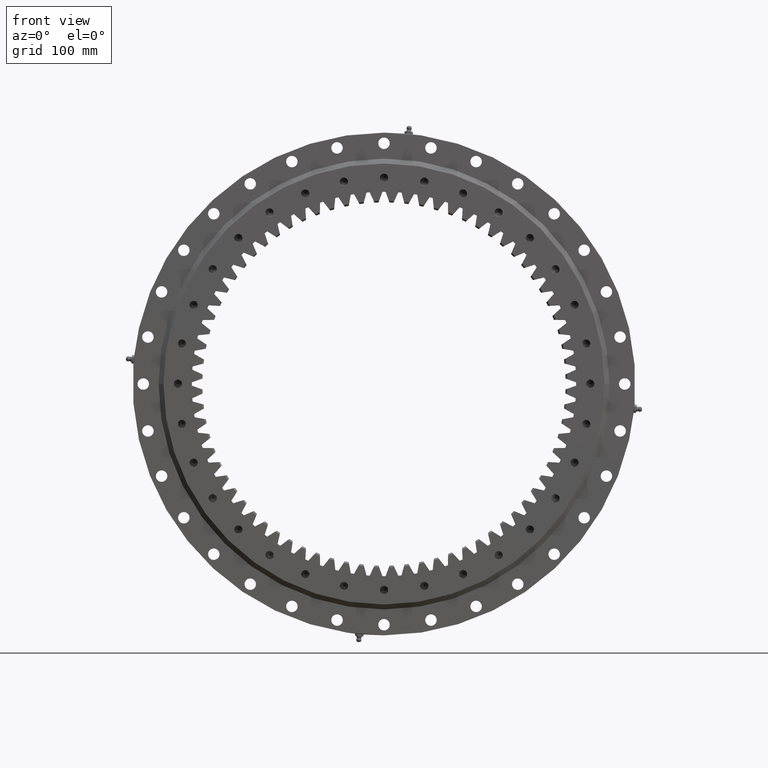
[diagram: clean part render]
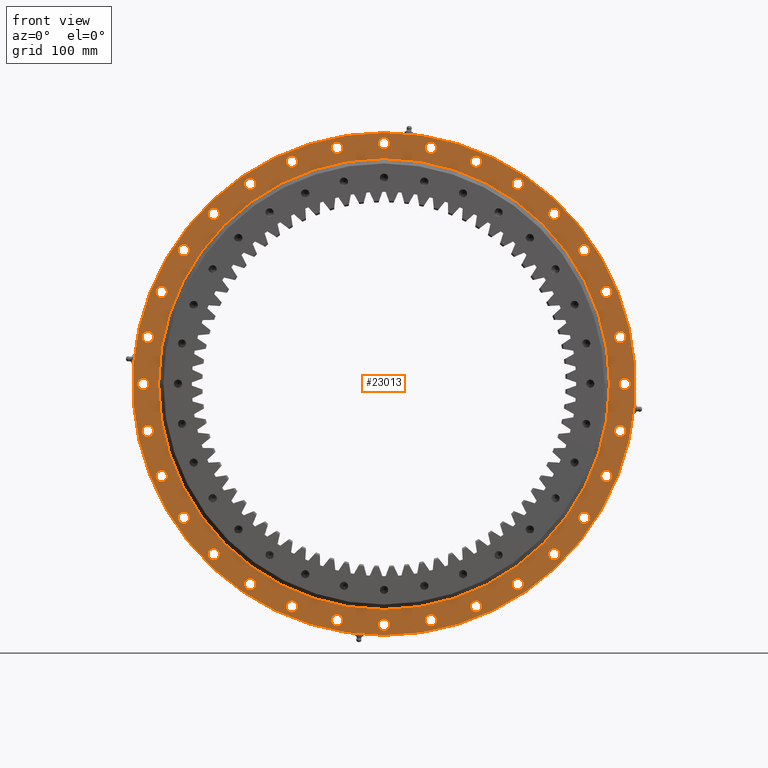
[diagram: same view with one face highlighted and labeled with its STEP entity id]
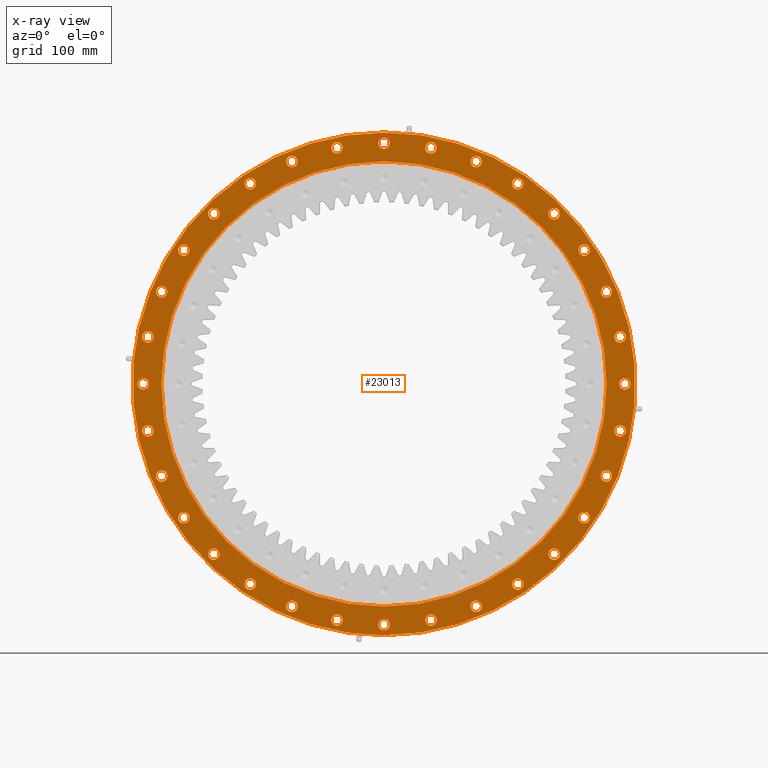
[diagram: x-ray of the same camera — body ghosted, the highlighted face saturated]
A machine part, front view. The second image highlights one B-rep face of the part: STEP entity #23013.
The next image is the same camera in x-ray: the body ghosted, the highlighted face saturated — about 0% of this face is hidden behind the body in this view.
In plain terms, the highlighted planar face has unit normal (-0, 1, 0).
Its self-contained STEP definition (entity closure, byte-faithful):
#51 = CARTESIAN_POINT ( 'NONE',  ( -294.9999999999999400, -17.99999999999991100, -1.196406405057057800E-012 ) ) ;
#72 = EDGE_CURVE ( 'NONE', #22870, #19099, #9537, .T. ) ;
#116 = CARTESIAN_POINT ( 'NONE',  ( -208.5965004500319800, -17.99999999999990800, 201.5965004500309000 ) ) ;
#229 = CARTESIAN_POINT ( 'NONE',  ( 2.112655002379531500E-015, -17.99999999999987600, -6.289591239694367800E-016 ) ) ;
#232 = CARTESIAN_POINT ( 'NONE',  ( -208.5965004500319800, -17.99999999999990800, 208.5965004500309600 ) ) ;
#247 = CIRCLE ( 'NONE', #5415, 7.000000000000020400 ) ;
#416 = CIRCLE ( 'NONE', #21886, 7.000000000000008900 ) ;
#517 = CARTESIAN_POINT ( 'NONE',  ( -215.5965004500302500, -17.99999999999989300, -208.5965004500326900 ) ) ;
#529 = DIRECTION ( 'NONE',  ( 5.551115123129744300E-017, 0.0000000000000000000, 1.000000000000000000 ) ) ;
#562 = FACE_BOUND ( 'NONE', #25421, .T. ) ;
#563 = CARTESIAN_POINT ( 'NONE',  ( 2.227877095894191600E-012, -17.99999999999986900, -294.9999999999999400 ) ) ;
#584 = AXIS2_PLACEMENT_3D ( 'NONE', #3314, #24551, #5464 ) ;
#624 = CARTESIAN_POINT ( 'NONE',  ( -238.2835356292511900, -17.99999999999991100, 163.8932187407820000 ) ) ;
#652 = EDGE_CURVE ( 'NONE', #5390, #8946, #23726, .T. ) ;
#719 = DIRECTION ( 'NONE',  ( 0.3826834323650846700, 0.0000000000000000000, -0.9238795325112889600 ) ) ;
#721 = DIRECTION ( 'NONE',  ( 1.173697223544192200E-016, -1.000000000000000000, -3.494217355385783800E-017 ) ) ;
#734 = EDGE_CURVE ( 'NONE', #4438, #9918, #17098, .T. ) ;
#739 = EDGE_LOOP ( 'NONE', ( #5429, #25823 ) ) ;
#942 = ORIENTED_EDGE ( 'NONE', *, *, #7267, .F. ) ;
#1071 = EDGE_CURVE ( 'NONE', #8108, #4105, #10790, .T. ) ;
#1152 = CARTESIAN_POINT ( 'NONE',  ( 1.725332150070510000E-014, -17.99999999999988300, 272.7500000000000000 ) ) ;
#1172 = CIRCLE ( 'NONE', #5298, 7.000000000000006200 ) ;
#1180 = FACE_BOUND ( 'NONE', #2270, .T. ) ;
#1199 = CARTESIAN_POINT ( 'NONE',  ( -163.8932187407831400, -17.99999999999990400, 252.2835356292504200 ) ) ;
#1301 = CARTESIAN_POINT ( 'NONE',  ( 282.3316577189535200, -17.99999999999984000, -57.55164499475476700 ) ) ;
#1453 = EDGE_LOOP ( 'NONE', ( #11685, #10391 ) ) ;
#1619 = VERTEX_POINT ( 'NONE', #10645 ) ;
#1642 = VERTEX_POINT ( 'NONE', #17771 ) ;
#1687 = EDGE_LOOP ( 'NONE', ( #17629, #13058 ) ) ;
#1755 = CARTESIAN_POINT ( 'NONE',  ( 112.8916125477037400, -17.99999999999985400, -272.5444620908285700 ) ) ;
#1759 = CARTESIAN_POINT ( 'NONE',  ( -272.5444620908289700, -17.99999999999990400, -112.8916125477026800 ) ) ;
#1787 = ORIENTED_EDGE ( 'NONE', *, *, #21158, .F. ) ;
#1824 = AXIS2_PLACEMENT_3D ( 'NONE', #14842, #11942, #25934 ) ;
#1831 = FACE_BOUND ( 'NONE', #18839, .T. ) ;
#1837 = DIRECTION ( 'NONE',  ( -0.1950903220161353000, 0.0000000000000000000, -0.9807852804032289900 ) ) ;
#1860 = CARTESIAN_POINT ( 'NONE',  ( 245.2835356292523600, -17.99999999999984400, -163.8932187407803000 ) ) ;
#1863 = AXIS2_PLACEMENT_3D ( 'NONE', #9253, #18066, #3852 ) ;
#1887 = DIRECTION ( 'NONE',  ( 1.173697223544192200E-016, -1.000000000000000000, -3.494217355385783800E-017 ) ) ;
#1897 = CARTESIAN_POINT ( 'NONE',  ( -245.2835356292511900, -17.99999999999991100, 163.8932187407819800 ) ) ;
#1979 = VERTEX_POINT ( 'NONE', #20901 ) ;
#1980 = AXIS2_PLACEMENT_3D ( 'NONE', #20455, #10368, #16360 ) ;
#2018 = DIRECTION ( 'NONE',  ( -0.8314696123025384600, 0.0000000000000000000, 0.5555702330196122800 ) ) ;
#2021 = DIRECTION ( 'NONE',  ( 0.1950903220161286100, 0.0000000000000000000, 0.9807852804032303200 ) ) ;
#2068 = EDGE_CURVE ( 'NONE', #4105, #8108, #10076, .T. ) ;
#2077 = DIRECTION ( 'NONE',  ( 1.173697223544192200E-016, -1.000000000000000000, -3.494217355385783800E-017 ) ) ;
#2096 = ORIENTED_EDGE ( 'NONE', *, *, #13990, .F. ) ;
#2151 = VERTEX_POINT ( 'NONE', #18977 ) ;
#2240 = VERTEX_POINT ( 'NONE', #11434 ) ;
#2270 = EDGE_LOOP ( 'NONE', ( #15337, #18810 ) ) ;
#2334 = CIRCLE ( 'NONE', #1980, 7.000000000000014200 ) ;
#2451 = CARTESIAN_POINT ( 'NONE',  ( 289.3316577189522700, -17.99999999999984700, 57.55164499476114800 ) ) ;
#2463 = CARTESIAN_POINT ( 'NONE',  ( 2.223931761462018000E-012, -17.99999999999986900, -301.9999999999999400 ) ) ;
#2492 = FACE_BOUND ( 'NONE', #13810, .T. ) ;
#2516 = EDGE_CURVE ( 'NONE', #2757, #18627, #9111, .T. ) ;
#2518 = AXIS2_PLACEMENT_3D ( 'NONE', #19861, #5542, #17212 ) ;
#2546 = ORIENTED_EDGE ( 'NONE', *, *, #2068, .F. ) ;
#2580 = AXIS2_PLACEMENT_3D ( 'NONE', #19115, #6956, #21143 ) ;
#2612 = ORIENTED_EDGE ( 'NONE', *, *, #4209, .F. ) ;
#2632 = ORIENTED_EDGE ( 'NONE', *, *, #6537, .F. ) ;
#2641 = VERTEX_POINT ( 'NONE', #25322 ) ;
#2748 = CARTESIAN_POINT ( 'NONE',  ( -282.3316577189531800, -17.99999999999991500, 57.55164499475672800 ) ) ;
#2757 = VERTEX_POINT ( 'NONE', #11684 ) ;
#2768 = DIRECTION ( 'NONE',  ( 0.9807852804032295400, 0.0000000000000000000, -0.1950903220161324400 ) ) ;
#2823 = CIRCLE ( 'NONE', #6670, 7.000000000000013300 ) ;
#2907 = ORIENTED_EDGE ( 'NONE', *, *, #3176, .F. ) ;
#2971 = AXIS2_PLACEMENT_3D ( 'NONE', #18924, #18007, #4264 ) ;
#3030 = CARTESIAN_POINT ( 'NONE',  ( -245.2835356292498800, -17.99999999999989700, -163.8932187407839900 ) ) ;
#3067 = CARTESIAN_POINT ( 'NONE',  ( 57.55164499475376500, -17.99999999999987900, 296.3316577189537500 ) ) ;
#3080 = DIRECTION ( 'NONE',  ( 1.173697223544192200E-016, -1.000000000000000000, -3.494217355385783800E-017 ) ) ;
#3110 = CIRCLE ( 'NONE', #16679, 7.000000000000013300 ) ;
#3111 = DIRECTION ( 'NONE',  ( 0.9238795325112875200, 0.0000000000000000000, 0.3826834323650881200 ) ) ;
#3124 = FACE_BOUND ( 'NONE', #20816, .T. ) ;
#3140 = DIRECTION ( 'NONE',  ( 1.173697223544192200E-016, -1.000000000000000000, -3.494217355385783800E-017 ) ) ;
#3157 = EDGE_CURVE ( 'NONE', #25304, #23272, #10678, .T. ) ;
#3176 = EDGE_CURVE ( 'NONE', #24317, #18647, #5232, .T. ) ;
#3251 = CARTESIAN_POINT ( 'NONE',  ( -245.2835356292498800, -17.99999999999989700, -163.8932187407839900 ) ) ;
#3314 = CARTESIAN_POINT ( 'NONE',  ( -57.55164499475805000, -17.99999999999989300, 289.3316577189528400 ) ) ;
#3315 = EDGE_LOOP ( 'NONE', ( #20129, #5837 ) ) ;
#3332 = CARTESIAN_POINT ( 'NONE',  ( 265.5444620908307900, -17.99999999999984400, -112.8916125476987300 ) ) ;
#3429 = VERTEX_POINT ( 'NONE', #24008 ) ;
#3475 = DIRECTION ( 'NONE',  ( -0.9238795325112902900, 0.0000000000000000000, -0.3826834323650813400 ) ) ;
#3481 = DIRECTION ( 'NONE',  ( -0.9238795325112820800, 0.0000000000000000000, 0.3826834323651010500 ) ) ;
#3502 = EDGE_CURVE ( 'NONE', #3429, #3544, #12885, .T. ) ;
#3534 = CIRCLE ( 'NONE', #13957, 6.999999999999995600 ) ;
#3544 = VERTEX_POINT ( 'NONE', #24114 ) ;
#3547 = EDGE_CURVE ( 'NONE', #6778, #21574, #21720, .T. ) ;
#3631 = CIRCLE ( 'NONE', #3860, 7.000000000000033800 ) ;
#3640 = CARTESIAN_POINT ( 'NONE',  ( 112.8916125477037400, -17.99999999999985400, -279.5444620908285700 ) ) ;
#3653 = AXIS2_PLACEMENT_3D ( 'NONE', #12797, #25193, #11829 ) ;
#3698 = VERTEX_POINT ( 'NONE', #10926 ) ;
#3730 = AXIS2_PLACEMENT_3D ( 'NONE', #3251, #9178, #9147 ) ;
#3751 = FACE_BOUND ( 'NONE', #1687, .T. ) ;
#3784 = AXIS2_PLACEMENT_3D ( 'NONE', #7568, #7608, #7674 ) ;
#3852 = DIRECTION ( 'NONE',  ( 5.551115123125782700E-017, -3.379331446708065600E-017, 1.000000000000000000 ) ) ;
#3860 = AXIS2_PLACEMENT_3D ( 'NONE', #4196, #24030, #26041 ) ;
#3868 = EDGE_LOOP ( 'NONE', ( #6388, #14571 ) ) ;
#3937 = VERTEX_POINT ( 'NONE', #17399 ) ;
#3938 = CIRCLE ( 'NONE', #6087, 7.000000000000006200 ) ;
#3947 = ORIENTED_EDGE ( 'NONE', *, *, #5452, .F. ) ;
#3990 = DIRECTION ( 'NONE',  ( 1.173697223544192200E-016, -1.000000000000000000, -3.494217355385783800E-017 ) ) ;
#4001 = CARTESIAN_POINT ( 'NONE',  ( -57.55164499475569800, -17.99999999999987200, -289.3316577189533500 ) ) ;
#4021 = ORIENTED_EDGE ( 'NONE', *, *, #19342, .F. ) ;
#4049 = AXIS2_PLACEMENT_3D ( 'NONE', #16136, #16463, #20985 ) ;
#4058 = AXIS2_PLACEMENT_3D ( 'NONE', #7538, #21710, #9607 ) ;
#4061 = CARTESIAN_POINT ( 'NONE',  ( 289.3316577189535200, -17.99999999999984000, -57.55164499475476700 ) ) ;
#4086 = CIRCLE ( 'NONE', #24806, 7.000000000000027500 ) ;
#4105 = VERTEX_POINT ( 'NONE', #12009 ) ;
#4196 = CARTESIAN_POINT ( 'NONE',  ( -208.5965004500302200, -17.99999999999989300, -208.5965004500326900 ) ) ;
#4209 = EDGE_CURVE ( 'NONE', #4864, #5717, #2334, .T. ) ;
#4264 = DIRECTION ( 'NONE',  ( 0.9807852804032295400, 0.0000000000000000000, -0.1950903220161324400 ) ) ;
#4282 = CARTESIAN_POINT ( 'NONE',  ( 57.55164499476008200, -17.99999999999986100, -282.3316577189524400 ) ) ;
#4313 = CIRCLE ( 'NONE', #11810, 7.000000000000006200 ) ;
#4362 = EDGE_CURVE ( 'NONE', #6095, #8407, #15368, .T. ) ;
#4380 = FACE_BOUND ( 'NONE', #15121, .T. ) ;
#4403 = EDGE_CURVE ( 'NONE', #19399, #16069, #24195, .T. ) ;
#4434 = EDGE_CURVE ( 'NONE', #9115, #1642, #19484, .T. ) ;
#4438 = VERTEX_POINT ( 'NONE', #25700 ) ;
#4501 = CIRCLE ( 'NONE', #4049, 7.000000000000006200 ) ;
#4511 = EDGE_CURVE ( 'NONE', #23377, #22014, #6776, .T. ) ;
#4557 = CIRCLE ( 'NONE', #23201, 7.000000000000020400 ) ;
#4568 = EDGE_LOOP ( 'NONE', ( #14020, #1787 ) ) ;
#4576 = CARTESIAN_POINT ( 'NONE',  ( 57.55164499475376500, -17.99999999999987900, 282.3316577189537500 ) ) ;
#4594 = AXIS2_PLACEMENT_3D ( 'NONE', #19804, #22026, #24972 ) ;
#4620 = DIRECTION ( 'NONE',  ( 1.173697223544192200E-016, -1.000000000000000000, -3.494217355385783800E-017 ) ) ;
#4623 = DIRECTION ( 'NONE',  ( 0.9807852804032309900, 0.0000000000000000000, 0.1950903220161257500 ) ) ;
#4644 = CARTESIAN_POINT ( 'NONE',  ( 238.2835356292487500, -17.99999999999985800, 163.8932187407856700 ) ) ;
#4723 = ORIENTED_EDGE ( 'NONE', *, *, #5512, .F. ) ;
#4802 = CIRCLE ( 'NONE', #14657, 7.000000000000033800 ) ;
#4814 = CIRCLE ( 'NONE', #11742, 6.999999999999993800 ) ;
#4817 = DIRECTION ( 'NONE',  ( 1.173697223544192200E-016, -1.000000000000000000, -3.494217355385783800E-017 ) ) ;
#4846 = CIRCLE ( 'NONE', #4058, 7.000000000000014200 ) ;
#4852 = VERTEX_POINT ( 'NONE', #14522 ) ;
#4864 = VERTEX_POINT ( 'NONE', #10471 ) ;
#4915 = DIRECTION ( 'NONE',  ( -0.8314696123025507900, 0.0000000000000000000, -0.5555702330195939600 ) ) ;
#4941 = ORIENTED_EDGE ( 'NONE', *, *, #17783, .F. ) ;
#4983 = DIRECTION ( 'NONE',  ( 1.173697223544192200E-016, -1.000000000000000000, -3.494217355385783800E-017 ) ) ;
#5050 = FACE_BOUND ( 'NONE', #14971, .T. ) ;
#5056 = CIRCLE ( 'NONE', #22972, 7.000000000000040900 ) ;
#5079 = DIRECTION ( 'NONE',  ( 1.173697223544192200E-016, -1.000000000000000000, -3.494217355385783800E-017 ) ) ;
#5152 = VERTEX_POINT ( 'NONE', #12448 ) ;
#5155 = EDGE_CURVE ( 'NONE', #21963, #22960, #15622, .T. ) ;
#5232 = CIRCLE ( 'NONE', #9486, 7.000000000000007100 ) ;
#5272 = EDGE_CURVE ( 'NONE', #21868, #23235, #24473, .T. ) ;
#5298 = AXIS2_PLACEMENT_3D ( 'NONE', #51, #9910, #15855 ) ;
#5390 = VERTEX_POINT ( 'NONE', #6374 ) ;
#5408 = VERTEX_POINT ( 'NONE', #23523 ) ;
#5415 = AXIS2_PLACEMENT_3D ( 'NONE', #11787, #11958, #11937 ) ;
#5429 = ORIENTED_EDGE ( 'NONE', *, *, #7638, .F. ) ;
#5452 = EDGE_CURVE ( 'NONE', #1642, #9115, #4501, .T. ) ;
#5464 = DIRECTION ( 'NONE',  ( -0.1950903220161152300, 0.0000000000000000000, 0.9807852804032329800 ) ) ;
#5512 = EDGE_CURVE ( 'NONE', #23879, #6972, #24783, .T. ) ;
#5521 = EDGE_CURVE ( 'NONE', #8407, #6095, #8660, .T. ) ;
#5535 = AXIS2_PLACEMENT_3D ( 'NONE', #14517, #14494, #14589 ) ;
#5542 = DIRECTION ( 'NONE',  ( 1.173697223544192200E-016, -1.000000000000000000, -3.494217355385783800E-017 ) ) ;
#5559 = AXIS2_PLACEMENT_3D ( 'NONE', #12879, #5079, #3111 ) ;
#5574 = CARTESIAN_POINT ( 'NONE',  ( -163.8932187407831400, -17.99999999999990400, 245.2835356292504200 ) ) ;
#5618 = DIRECTION ( 'NONE',  ( -0.3826834323650965500, 0.0000000000000000000, -0.9238795325112839600 ) ) ;
#5637 = CARTESIAN_POINT ( 'NONE',  ( -289.3316577189526100, -17.99999999999990800, -57.55164499475905900 ) ) ;
#5653 = DIRECTION ( 'NONE',  ( 1.173697223544192200E-016, -1.000000000000000000, -3.494217355385783800E-017 ) ) ;
#5656 = CARTESIAN_POINT ( 'NONE',  ( -112.8916125476996500, -17.99999999999987900, -265.5444620908303400 ) ) ;
#5674 = DIRECTION ( 'NONE',  ( -0.5555702330195911900, 0.0000000000000000000, 0.8314696123025526700 ) ) ;
#5717 = VERTEX_POINT ( 'NONE', #25118 ) ;
#5727 = DIRECTION ( 'NONE',  ( 1.173697223544192200E-016, -1.000000000000000000, -3.494217355385783800E-017 ) ) ;
#5728 = EDGE_CURVE ( 'NONE', #16069, #19399, #4814, .T. ) ;
#5837 = ORIENTED_EDGE ( 'NONE', *, *, #10354, .F. ) ;
#5878 = DIRECTION ( 'NONE',  ( -0.9238795325112820800, 0.0000000000000000000, 0.3826834323651010500 ) ) ;
#5894 = DIRECTION ( 'NONE',  ( 1.173697223544192200E-016, -1.000000000000000000, -3.494217355385783800E-017 ) ) ;
#5910 = ORIENTED_EDGE ( 'NONE', *, *, #21989, .F. ) ;
#5969 = AXIS2_PLACEMENT_3D ( 'NONE', #1897, #2077, #2018 ) ;
#5979 = FACE_BOUND ( 'NONE', #8677, .T. ) ;
#6040 = AXIS2_PLACEMENT_3D ( 'NONE', #24038, #17676, #5878 ) ;
#6087 = AXIS2_PLACEMENT_3D ( 'NONE', #17940, #18616, #24084 ) ;
#6095 = VERTEX_POINT ( 'NONE', #7566 ) ;
#6167 = EDGE_LOOP ( 'NONE', ( #2632, #4723 ) ) ;
#6209 = VERTEX_POINT ( 'NONE', #10885 ) ;
#6297 = ORIENTED_EDGE ( 'NONE', *, *, #1071, .F. ) ;
#6374 = CARTESIAN_POINT ( 'NONE',  ( -57.55164499475805000, -17.99999999999989300, 296.3316577189528400 ) ) ;
#6388 = ORIENTED_EDGE ( 'NONE', *, *, #24264, .F. ) ;
#6435 = CARTESIAN_POINT ( 'NONE',  ( 1.921008958160694200E-014, -17.99999999999988600, 308.0000000000000000 ) ) ;
#6448 = ORIENTED_EDGE ( 'NONE', *, *, #23411, .F. ) ;
#6498 = ORIENTED_EDGE ( 'NONE', *, *, #12803, .F. ) ;
#6537 = EDGE_CURVE ( 'NONE', #6972, #23879, #7316, .T. ) ;
#6619 = FACE_BOUND ( 'NONE', #16032, .T. ) ;
#6652 = ORIENTED_EDGE ( 'NONE', *, *, #17859, .F. ) ;
#6670 = AXIS2_PLACEMENT_3D ( 'NONE', #11164, #25239, #13187 ) ;
#6776 = CIRCLE ( 'NONE', #5559, 7.000000000000015100 ) ;
#6777 = AXIS2_PLACEMENT_3D ( 'NONE', #5574, #5653, #5674 ) ;
#6778 = VERTEX_POINT ( 'NONE', #3332 ) ;
#6877 = CARTESIAN_POINT ( 'NONE',  ( -272.5444620908300000, -17.99999999999991100, 112.8916125477004800 ) ) ;
#6889 = VERTEX_POINT ( 'NONE', #1199 ) ;
#6936 = DIRECTION ( 'NONE',  ( 0.9238795325112854100, 0.0000000000000000000, -0.3826834323650931100 ) ) ;
#6950 = EDGE_CURVE ( 'NONE', #6209, #7281, #21263, .T. ) ;
#6956 = DIRECTION ( 'NONE',  ( 1.173697223544192200E-016, -1.000000000000000000, -3.494217355385783800E-017 ) ) ;
#6972 = VERTEX_POINT ( 'NONE', #25588 ) ;
#6997 = EDGE_LOOP ( 'NONE', ( #16735, #17024 ) ) ;
#7060 = DIRECTION ( 'NONE',  ( -0.8314696123025384600, 0.0000000000000000000, 0.5555702330196122800 ) ) ;
#7080 = VERTEX_POINT ( 'NONE', #10696 ) ;
#7099 = VERTEX_POINT ( 'NONE', #517 ) ;
#7250 = EDGE_CURVE ( 'NONE', #20716, #1979, #25615, .T. ) ;
#7255 = FACE_BOUND ( 'NONE', #23135, .T. ) ;
#7267 = EDGE_CURVE ( 'NONE', #21574, #6778, #20299, .T. ) ;
#7281 = VERTEX_POINT ( 'NONE', #3640 ) ;
#7316 = CIRCLE ( 'NONE', #19719, 7.000000000000023100 ) ;
#7337 = CARTESIAN_POINT ( 'NONE',  ( -265.5444620908300000, -17.99999999999991100, 112.8916125477004800 ) ) ;
#7410 = DIRECTION ( 'NONE',  ( 1.173697223544192200E-016, -1.000000000000000000, -3.494217355385783800E-017 ) ) ;
#7504 = AXIS2_PLACEMENT_3D ( 'NONE', #21994, #9889, #24021 ) ;
#7538 = CARTESIAN_POINT ( 'NONE',  ( 208.5965004500334300, -17.99999999999984700, -208.5965004500295100 ) ) ;
#7559 = DIRECTION ( 'NONE',  ( 1.173697223544192200E-016, -1.000000000000000000, -3.494217355385783800E-017 ) ) ;
#7566 = CARTESIAN_POINT ( 'NONE',  ( -112.8916125476996500, -17.99999999999987900, -279.5444620908303400 ) ) ;
#7568 = CARTESIAN_POINT ( 'NONE',  ( 208.5965004500287700, -17.99999999999986100, 208.5965004500341700 ) ) ;
#7581 = EDGE_LOOP ( 'NONE', ( #19768, #17148 ) ) ;
#7599 = VERTEX_POINT ( 'NONE', #15426 ) ;
#7608 = DIRECTION ( 'NONE',  ( 1.173697223544192200E-016, -1.000000000000000000, -3.494217355385783800E-017 ) ) ;
#7638 = EDGE_CURVE ( 'NONE', #22014, #23377, #17410, .T. ) ;
#7674 = DIRECTION ( 'NONE',  ( 0.7071067811865475700, 0.0000000000000000000, 0.7071067811865475700 ) ) ;
#7684 = DIRECTION ( 'NONE',  ( 1.173697223544192200E-016, -1.000000000000000000, -3.494217355385783800E-017 ) ) ;
#7826 = ORIENTED_EDGE ( 'NONE', *, *, #26087, .F. ) ;
#7835 = DIRECTION ( 'NONE',  ( 1.173697223544192200E-016, -1.000000000000000000, -3.494217355385783800E-017 ) ) ;
#7876 = FACE_BOUND ( 'NONE', #15362, .T. ) ;
#8055 = EDGE_CURVE ( 'NONE', #19149, #20682, #3110, .T. ) ;
#8099 = AXIS2_PLACEMENT_3D ( 'NONE', #9300, #3140, #2021 ) ;
#8108 = VERTEX_POINT ( 'NONE', #116 ) ;
#8138 = EDGE_CURVE ( 'NONE', #4852, #19900, #1172, .T. ) ;
#8150 = ORIENTED_EDGE ( 'NONE', *, *, #734, .F. ) ;
#8172 = VERTEX_POINT ( 'NONE', #2748 ) ;
#8175 = ORIENTED_EDGE ( 'NONE', *, *, #6950, .F. ) ;
#8201 = EDGE_LOOP ( 'NONE', ( #25266, #8150 ) ) ;
#8260 = CIRCLE ( 'NONE', #11893, 7.000000000000027500 ) ;
#8407 = VERTEX_POINT ( 'NONE', #5656 ) ;
#8422 = CARTESIAN_POINT ( 'NONE',  ( 279.5444620908307900, -17.99999999999984400, -112.8916125476987300 ) ) ;
#8537 = FACE_BOUND ( 'NONE', #4568, .T. ) ;
#8578 = DIRECTION ( 'NONE',  ( -0.9238795325112902900, 0.0000000000000000000, -0.3826834323650813400 ) ) ;
#8584 = DIRECTION ( 'NONE',  ( -7.038473828917530800E-015, 0.0000000000000000000, -1.000000000000000000 ) ) ;
#8620 = ORIENTED_EDGE ( 'NONE', *, *, #4362, .F. ) ;
#8660 = CIRCLE ( 'NONE', #16284, 7.000000000000041700 ) ;
#8677 = EDGE_LOOP ( 'NONE', ( #17649, #3947 ) ) ;
#8680 = CARTESIAN_POINT ( 'NONE',  ( -163.8932187407811500, -17.99999999999989000, -252.2835356292518700 ) ) ;
#8882 = DIRECTION ( 'NONE',  ( 1.000000000000000000, 0.0000000000000000000, -3.546992490074414100E-015 ) ) ;
#8946 = VERTEX_POINT ( 'NONE', #25891 ) ;
#9001 = AXIS2_PLACEMENT_3D ( 'NONE', #3030, #17856, #4915 ) ;
#9039 = DIRECTION ( 'NONE',  ( 1.173697223544192200E-016, -1.000000000000000000, -3.494217355385783800E-017 ) ) ;
#9065 = ORIENTED_EDGE ( 'NONE', *, *, #11146, .F. ) ;
#9071 = CARTESIAN_POINT ( 'NONE',  ( 163.8932187407793900, -17.99999999999986500, 245.2835356292530100 ) ) ;
#9107 = EDGE_CURVE ( 'NONE', #11998, #7080, #4313, .T. ) ;
#9111 = CIRCLE ( 'NONE', #3653, 7.000000000000030200 ) ;
#9115 = VERTEX_POINT ( 'NONE', #20418 ) ;
#9147 = DIRECTION ( 'NONE',  ( -0.8314696123025507900, 0.0000000000000000000, -0.5555702330195939600 ) ) ;
#9178 = DIRECTION ( 'NONE',  ( 1.173697223544192200E-016, -1.000000000000000000, -3.494217355385783800E-017 ) ) ;
#9200 = FACE_BOUND ( 'NONE', #17755, .T. ) ;
#9209 = CARTESIAN_POINT ( 'NONE',  ( 289.3316577189522700, -17.99999999999984700, 57.55164499476114800 ) ) ;
#9211 = DIRECTION ( 'NONE',  ( 0.5555702330196049500, 0.0000000000000000000, 0.8314696123025434600 ) ) ;
#9213 = DIRECTION ( 'NONE',  ( 0.9807852804032309900, 0.0000000000000000000, 0.1950903220161257500 ) ) ;
#9253 = CARTESIAN_POINT ( 'NONE',  ( 2.112655002379531500E-015, -17.99999999999987600, -6.289591239694367800E-016 ) ) ;
#9300 = CARTESIAN_POINT ( 'NONE',  ( 57.55164499475376500, -17.99999999999987900, 289.3316577189537500 ) ) ;
#9333 = AXIS2_PLACEMENT_3D ( 'NONE', #22392, #22487, #20862 ) ;
#9486 = AXIS2_PLACEMENT_3D ( 'NONE', #10083, #20637, #7060 ) ;
#9515 = EDGE_LOOP ( 'NONE', ( #24393, #2096 ) ) ;
#9526 = AXIS2_PLACEMENT_3D ( 'NONE', #11669, #12400, #18707 ) ;
#9537 = CIRCLE ( 'NONE', #2971, 7.000000000000018700 ) ;
#9584 = DIRECTION ( 'NONE',  ( -0.1950903220161353000, 0.0000000000000000000, -0.9807852804032289900 ) ) ;
#9597 = VERTEX_POINT ( 'NONE', #26266 ) ;
#9607 = DIRECTION ( 'NONE',  ( 0.7071067811865435800, 0.0000000000000000000, -0.7071067811865515700 ) ) ;
#9725 = DIRECTION ( 'NONE',  ( 1.173697223544192200E-016, -1.000000000000000000, -3.494217355385783800E-017 ) ) ;
#9788 = CARTESIAN_POINT ( 'NONE',  ( -4.692984696740754700E-014, -17.99999999999986500, -272.7500000000000000 ) ) ;
#9889 = DIRECTION ( 'NONE',  ( 1.173697223544192200E-016, -1.000000000000000000, -3.494217355385783800E-017 ) ) ;
#9910 = DIRECTION ( 'NONE',  ( 1.173697223544192200E-016, -1.000000000000000000, -3.494217355385783800E-017 ) ) ;
#9918 = VERTEX_POINT ( 'NONE', #7337 ) ;
#10076 = CIRCLE ( 'NONE', #16925, 7.000000000000014200 ) ;
#10081 = DIRECTION ( 'NONE',  ( 5.551115123125782700E-017, -3.379331446708065600E-017, 1.000000000000000000 ) ) ;
#10083 = CARTESIAN_POINT ( 'NONE',  ( -245.2835356292511900, -17.99999999999991100, 163.8932187407819800 ) ) ;
#10092 = DIRECTION ( 'NONE',  ( -0.7071067811865395800, 0.0000000000000000000, 0.7071067811865554600 ) ) ;
#10132 = ORIENTED_EDGE ( 'NONE', *, *, #23100, .F. ) ;
#10149 = DIRECTION ( 'NONE',  ( 1.173697223544192200E-016, -1.000000000000000000, -3.494217355385783800E-017 ) ) ;
#10167 = ORIENTED_EDGE ( 'NONE', *, *, #10668, .F. ) ;
#10315 = EDGE_CURVE ( 'NONE', #7281, #6209, #20757, .T. ) ;
#10354 = EDGE_CURVE ( 'NONE', #14047, #19960, #4557, .T. ) ;
#10358 = DIRECTION ( 'NONE',  ( 1.000000000000000000, 0.0000000000000000000, -3.546992490074414100E-015 ) ) ;
#10368 = DIRECTION ( 'NONE',  ( 1.173697223544192200E-016, -1.000000000000000000, -3.494217355385783800E-017 ) ) ;
#10391 = ORIENTED_EDGE ( 'NONE', *, *, #17502, .F. ) ;
#10411 = CIRCLE ( 'NONE', #3730, 7.000000000000038200 ) ;
#10471 = CARTESIAN_POINT ( 'NONE',  ( 208.5965004500334300, -17.99999999999984700, -201.5965004500294800 ) ) ;
#10567 = CIRCLE ( 'NONE', #16081, 7.000000000000003600 ) ;
#10587 = EDGE_LOOP ( 'NONE', ( #24655, #2907 ) ) ;
#10645 = CARTESIAN_POINT ( 'NONE',  ( -282.3316577189526100, -17.99999999999990800, -57.55164499475905900 ) ) ;
#10661 = DIRECTION ( 'NONE',  ( 0.9238795325112875200, 0.0000000000000000000, 0.3826834323650881200 ) ) ;
#10668 = EDGE_CURVE ( 'NONE', #2641, #26142, #21067, .T. ) ;
#10678 = CIRCLE ( 'NONE', #8099, 7.000000000000013300 ) ;
#10696 = CARTESIAN_POINT ( 'NONE',  ( 301.9999999999999400, -17.99999999999984400, 3.230293529296045700E-012 ) ) ;
#10736 = CARTESIAN_POINT ( 'NONE',  ( 112.8916125476977600, -17.99999999999987200, 265.5444620908311300 ) ) ;
#10737 = EDGE_LOOP ( 'NONE', ( #13489, #7826 ) ) ;
#10790 = CIRCLE ( 'NONE', #11025, 7.000000000000014200 ) ;
#10885 = CARTESIAN_POINT ( 'NONE',  ( 112.8916125477037400, -17.99999999999985400, -265.5444620908285700 ) ) ;
#10924 = ORIENTED_EDGE ( 'NONE', *, *, #25918, .F. ) ;
#10926 = CARTESIAN_POINT ( 'NONE',  ( -201.5965004500301900, -17.99999999999989300, -208.5965004500326900 ) ) ;
#11025 = AXIS2_PLACEMENT_3D ( 'NONE', #15054, #26111, #26129 ) ;
#11046 = VERTEX_POINT ( 'NONE', #20342 ) ;
#11050 = CARTESIAN_POINT ( 'NONE',  ( 296.3316577189535200, -17.99999999999984000, -57.55164499475476700 ) ) ;
#11064 = CARTESIAN_POINT ( 'NONE',  ( 201.5965004500287400, -17.99999999999986100, 208.5965004500341700 ) ) ;
#11146 = EDGE_CURVE ( 'NONE', #19122, #1619, #16913, .T. ) ;
#11164 = CARTESIAN_POINT ( 'NONE',  ( 57.55164499475376500, -17.99999999999987900, 289.3316577189537500 ) ) ;
#11362 = ORIENTED_EDGE ( 'NONE', *, *, #13446, .F. ) ;
#11416 = FACE_BOUND ( 'NONE', #25444, .T. ) ;
#11434 = CARTESIAN_POINT ( 'NONE',  ( -163.8932187407831400, -17.99999999999990400, 238.2835356292504200 ) ) ;
#11594 = DIRECTION ( 'NONE',  ( 1.173697223544192200E-016, -1.000000000000000000, -3.494217355385783800E-017 ) ) ;
#11634 = DIRECTION ( 'NONE',  ( 1.173697223544192200E-016, -1.000000000000000000, -3.494217355385783800E-017 ) ) ;
#11669 = CARTESIAN_POINT ( 'NONE',  ( 1.921008958160694200E-014, -17.99999999999988600, 308.0000000000000000 ) ) ;
#11684 = CARTESIAN_POINT ( 'NONE',  ( 163.8932187407848700, -17.99999999999985100, -238.2835356292492600 ) ) ;
#11685 = ORIENTED_EDGE ( 'NONE', *, *, #2516, .F. ) ;
#11735 = DIRECTION ( 'NONE',  ( 0.8314696123025415700, 0.0000000000000000000, -0.5555702330196076200 ) ) ;
#11742 = AXIS2_PLACEMENT_3D ( 'NONE', #1759, #3990, #3475 ) ;
#11787 = CARTESIAN_POINT ( 'NONE',  ( 112.8916125476977600, -17.99999999999987200, 272.5444620908311900 ) ) ;
#11810 = AXIS2_PLACEMENT_3D ( 'NONE', #16859, #13832, #8882 ) ;
#11829 = DIRECTION ( 'NONE',  ( 0.5555702330195985100, 0.0000000000000000000, -0.8314696123025476800 ) ) ;
#11856 = EDGE_CURVE ( 'NONE', #2240, #6889, #17820, .T. ) ;
#11887 = ORIENTED_EDGE ( 'NONE', *, *, #13298, .F. ) ;
#11893 = AXIS2_PLACEMENT_3D ( 'NONE', #18426, #18393, #18513 ) ;
#11926 = EDGE_CURVE ( 'NONE', #12597, #18602, #10567, .T. ) ;
#11931 = ORIENTED_EDGE ( 'NONE', *, *, #24522, .F. ) ;
#11937 = DIRECTION ( 'NONE',  ( 0.3826834323650897800, 0.0000000000000000000, 0.9238795325112868500 ) ) ;
#11942 = DIRECTION ( 'NONE',  ( 1.173697223544192200E-016, -1.000000000000000000, -3.494217355385783800E-017 ) ) ;
#11958 = DIRECTION ( 'NONE',  ( 1.173697223544192200E-016, -1.000000000000000000, -3.494217355385783800E-017 ) ) ;
#11959 = ORIENTED_EDGE ( 'NONE', *, *, #3157, .F. ) ;
#11995 = CARTESIAN_POINT ( 'NONE',  ( 163.8932187407793900, -17.99999999999986500, 238.2835356292529800 ) ) ;
#11998 = VERTEX_POINT ( 'NONE', #18509 ) ;
#12009 = CARTESIAN_POINT ( 'NONE',  ( -208.5965004500319800, -17.99999999999990800, 215.5965004500309900 ) ) ;
#12036 = CARTESIAN_POINT ( 'NONE',  ( -296.3316577189526700, -17.99999999999990800, -57.55164499475905900 ) ) ;
#12044 = FACE_BOUND ( 'NONE', #739, .T. ) ;
#12092 = CARTESIAN_POINT ( 'NONE',  ( 245.2835356292523600, -17.99999999999984400, -163.8932187407803000 ) ) ;
#12188 = DIRECTION ( 'NONE',  ( 0.3826834323650846700, 0.0000000000000000000, -0.9238795325112889600 ) ) ;
#12209 = PLANE ( 'NONE',  #9526 ) ;
#12257 = AXIS2_PLACEMENT_3D ( 'NONE', #4001, #18221, #9584 ) ;
#12314 = EDGE_LOOP ( 'NONE', ( #15567, #8620 ) ) ;
#12400 = DIRECTION ( 'NONE',  ( -1.173697223544192200E-016, 1.000000000000000000, 3.494217355385783800E-017 ) ) ;
#12429 = CARTESIAN_POINT ( 'NONE',  ( -252.2835356292512200, -17.99999999999991100, 163.8932187407820000 ) ) ;
#12447 = CIRCLE ( 'NONE', #5969, 7.000000000000007100 ) ;
#12448 = CARTESIAN_POINT ( 'NONE',  ( -296.3316577189531800, -17.99999999999991500, 57.55164499475672800 ) ) ;
#12455 = AXIS2_PLACEMENT_3D ( 'NONE', #19877, #7835, #18835 ) ;
#12597 = VERTEX_POINT ( 'NONE', #24468 ) ;
#12657 = DIRECTION ( 'NONE',  ( 1.173697223544192200E-016, -1.000000000000000000, -3.494217355385783800E-017 ) ) ;
#12663 = DIRECTION ( 'NONE',  ( 0.8314696123025464600, 0.0000000000000000000, 0.5555702330196002900 ) ) ;
#12685 = FACE_BOUND ( 'NONE', #15991, .T. ) ;
#12686 = DIRECTION ( 'NONE',  ( 1.173697223544192200E-016, -1.000000000000000000, -3.494217355385783800E-017 ) ) ;
#12797 = CARTESIAN_POINT ( 'NONE',  ( 163.8932187407848700, -17.99999999999985100, -245.2835356292492900 ) ) ;
#12803 = EDGE_CURVE ( 'NONE', #5152, #8172, #8260, .T. ) ;
#12879 = CARTESIAN_POINT ( 'NONE',  ( 272.5444620908281800, -17.99999999999985100, 112.8916125477047000 ) ) ;
#12885 = CIRCLE ( 'NONE', #9001, 7.000000000000038200 ) ;
#12904 = AXIS2_PLACEMENT_3D ( 'NONE', #21833, #9725, #5618 ) ;
#13005 = AXIS2_PLACEMENT_3D ( 'NONE', #17831, #17853, #12663 ) ;
#13058 = ORIENTED_EDGE ( 'NONE', *, *, #18165, .F. ) ;
#13187 = DIRECTION ( 'NONE',  ( 0.1950903220161286100, 0.0000000000000000000, 0.9807852804032303200 ) ) ;
#13202 = ORIENTED_EDGE ( 'NONE', *, *, #25966, .F. ) ;
#13298 = EDGE_CURVE ( 'NONE', #6889, #2240, #23751, .T. ) ;
#13304 = FACE_BOUND ( 'NONE', #20377, .T. ) ;
#13446 = EDGE_CURVE ( 'NONE', #3937, #7599, #20613, .T. ) ;
#13449 = CARTESIAN_POINT ( 'NONE',  ( -301.9999999999999400, -17.99999999999991100, -1.194356904247297200E-012 ) ) ;
#13489 = ORIENTED_EDGE ( 'NONE', *, *, #16292, .F. ) ;
#13535 = CIRCLE ( 'NONE', #25107, 7.000000000000006200 ) ;
#13536 = AXIS2_PLACEMENT_3D ( 'NONE', #21461, #24727, #22276 ) ;
#13583 = AXIS2_PLACEMENT_3D ( 'NONE', #25504, #25555, #25213 ) ;
#13610 = DIRECTION ( 'NONE',  ( -0.3826834323650965500, 0.0000000000000000000, -0.9238795325112839600 ) ) ;
#13723 = ORIENTED_EDGE ( 'NONE', *, *, #7250, .T. ) ;
#13810 = EDGE_LOOP ( 'NONE', ( #8175, #15331 ) ) ;
#13832 = DIRECTION ( 'NONE',  ( 1.173697223544192200E-016, -1.000000000000000000, -3.494217355385783800E-017 ) ) ;
#13883 = VERTEX_POINT ( 'NONE', #4644 ) ;
#13928 = FACE_BOUND ( 'NONE', #6997, .T. ) ;
#13957 = AXIS2_PLACEMENT_3D ( 'NONE', #6877, #11594, #3481 ) ;
#13963 = DIRECTION ( 'NONE',  ( 1.173697223544192200E-016, -1.000000000000000000, -3.494217355385783800E-017 ) ) ;
#13990 = EDGE_CURVE ( 'NONE', #25142, #2151, #21830, .T. ) ;
#14020 = ORIENTED_EDGE ( 'NONE', *, *, #17919, .F. ) ;
#14033 = DIRECTION ( 'NONE',  ( 1.173697223544192200E-016, -1.000000000000000000, -3.494217355385783800E-017 ) ) ;
#14047 = VERTEX_POINT ( 'NONE', #10736 ) ;
#14156 = CARTESIAN_POINT ( 'NONE',  ( 265.5444620908281800, -17.99999999999985100, 112.8916125477047000 ) ) ;
#14179 = CARTESIAN_POINT ( 'NONE',  ( -57.55164499475569100, -17.99999999999987200, -296.3316577189533500 ) ) ;
#14235 = CIRCLE ( 'NONE', #13583, 7.000000000000003600 ) ;
#14266 = CIRCLE ( 'NONE', #2580, 6.999999999999994700 ) ;
#14417 = AXIS2_PLACEMENT_3D ( 'NONE', #25485, #25453, #25671 ) ;
#14494 = DIRECTION ( 'NONE',  ( 1.173697223544192200E-016, -1.000000000000000000, -3.494217355385783800E-017 ) ) ;
#14517 = CARTESIAN_POINT ( 'NONE',  ( -112.8916125477017300, -17.99999999999990100, 272.5444620908293700 ) ) ;
#14522 = CARTESIAN_POINT ( 'NONE',  ( -287.9999999999999400, -17.99999999999991100, -1.195991313123937900E-012 ) ) ;
#14571 = ORIENTED_EDGE ( 'NONE', *, *, #9107, .F. ) ;
#14572 = FACE_BOUND ( 'NONE', #8201, .T. ) ;
#14589 = DIRECTION ( 'NONE',  ( -0.3826834323650767400, 0.0000000000000000000, 0.9238795325112920700 ) ) ;
#14657 = AXIS2_PLACEMENT_3D ( 'NONE', #26052, #16010, #18074 ) ;
#14842 = CARTESIAN_POINT ( 'NONE',  ( 2.112655002379531100E-015, -17.99999999999987200, -6.289591239694365800E-016 ) ) ;
#14884 = CARTESIAN_POINT ( 'NONE',  ( 272.5444620908281800, -17.99999999999985100, 112.8916125477047000 ) ) ;
#14911 = EDGE_CURVE ( 'NONE', #3544, #3429, #10411, .T. ) ;
#14971 = EDGE_LOOP ( 'NONE', ( #11887, #22659 ) ) ;
#15054 = CARTESIAN_POINT ( 'NONE',  ( -208.5965004500319800, -17.99999999999990800, 208.5965004500309600 ) ) ;
#15121 = EDGE_LOOP ( 'NONE', ( #2546, #6297 ) ) ;
#15331 = ORIENTED_EDGE ( 'NONE', *, *, #10315, .F. ) ;
#15337 = ORIENTED_EDGE ( 'NONE', *, *, #8055, .F. ) ;
#15362 = EDGE_LOOP ( 'NONE', ( #10132, #19854 ) ) ;
#15368 = CIRCLE ( 'NONE', #12904, 7.000000000000041700 ) ;
#15426 = CARTESIAN_POINT ( 'NONE',  ( 282.3316577189522700, -17.99999999999984700, 57.55164499476114800 ) ) ;
#15567 = ORIENTED_EDGE ( 'NONE', *, *, #5521, .F. ) ;
#15599 = VERTEX_POINT ( 'NONE', #19756 ) ;
#15622 = CIRCLE ( 'NONE', #1824, 272.7500000000000000 ) ;
#15765 = ORIENTED_EDGE ( 'NONE', *, *, #72, .F. ) ;
#15777 = ORIENTED_EDGE ( 'NONE', *, *, #5155, .F. ) ;
#15792 = AXIS2_PLACEMENT_3D ( 'NONE', #1860, #1887, #16326 ) ;
#15855 = DIRECTION ( 'NONE',  ( -1.000000000000000000, 0.0000000000000000000, 1.052995516776067500E-014 ) ) ;
#15991 = EDGE_LOOP ( 'NONE', ( #6448, #10167 ) ) ;
#15992 = CIRCLE ( 'NONE', #14417, 7.000000000000030200 ) ;
#16010 = DIRECTION ( 'NONE',  ( 1.173697223544192200E-016, -1.000000000000000000, -3.494217355385783800E-017 ) ) ;
#16032 = EDGE_LOOP ( 'NONE', ( #22415, #23277 ) ) ;
#16069 = VERTEX_POINT ( 'NONE', #19969 ) ;
#16081 = AXIS2_PLACEMENT_3D ( 'NONE', #17022, #17081, #17112 ) ;
#16136 = CARTESIAN_POINT ( 'NONE',  ( -4.283625775806880300E-012, -17.99999999999988600, 294.9999999999999400 ) ) ;
#16233 = ORIENTED_EDGE ( 'NONE', *, *, #18681, .F. ) ;
#16284 = AXIS2_PLACEMENT_3D ( 'NONE', #23717, #20931, #13610 ) ;
#16292 = EDGE_CURVE ( 'NONE', #9597, #15599, #16685, .T. ) ;
#16326 = DIRECTION ( 'NONE',  ( 0.8314696123025415700, 0.0000000000000000000, -0.5555702330196076200 ) ) ;
#16360 = DIRECTION ( 'NONE',  ( 0.7071067811865435800, 0.0000000000000000000, -0.7071067811865515700 ) ) ;
#16463 = DIRECTION ( 'NONE',  ( 1.173697223544192200E-016, -1.000000000000000000, -3.494217355385783800E-017 ) ) ;
#16610 = DIRECTION ( 'NONE',  ( 0.8314696123025464600, 0.0000000000000000000, 0.5555702330196002900 ) ) ;
#16616 = AXIS2_PLACEMENT_3D ( 'NONE', #4061, #7684, #2768 ) ;
#16658 = ORIENTED_EDGE ( 'NONE', *, *, #26157, .F. ) ;
#16679 = AXIS2_PLACEMENT_3D ( 'NONE', #23783, #22072, #22018 ) ;
#16683 = VERTEX_POINT ( 'NONE', #8680 ) ;
#16685 = CIRCLE ( 'NONE', #5535, 7.000000000000040900 ) ;
#16735 = ORIENTED_EDGE ( 'NONE', *, *, #14911, .F. ) ;
#16766 = FACE_BOUND ( 'NONE', #3315, .T. ) ;
#16779 = CARTESIAN_POINT ( 'NONE',  ( -4.283625775806880300E-012, -17.99999999999988600, 294.9999999999999400 ) ) ;
#16848 = EDGE_CURVE ( 'NONE', #1979, #20716, #17936, .T. ) ;
#16859 = CARTESIAN_POINT ( 'NONE',  ( 294.9999999999999400, -17.99999999999984400, 3.255122476726566800E-012 ) ) ;
#16902 = DIRECTION ( 'NONE',  ( 1.173697223544192200E-016, -1.000000000000000000, -3.494217355385783800E-017 ) ) ;
#16913 = CIRCLE ( 'NONE', #13536, 6.999999999999999100 ) ;
#16925 = AXIS2_PLACEMENT_3D ( 'NONE', #232, #12657, #10092 ) ;
#16976 = CARTESIAN_POINT ( 'NONE',  ( -289.3316577189531800, -17.99999999999991500, 57.55164499475672800 ) ) ;
#17022 = CARTESIAN_POINT ( 'NONE',  ( 57.55164499476008200, -17.99999999999986100, -289.3316577189525000 ) ) ;
#17024 = ORIENTED_EDGE ( 'NONE', *, *, #3502, .F. ) ;
#17042 = CARTESIAN_POINT ( 'NONE',  ( 112.8916125477037400, -17.99999999999985400, -272.5444620908285700 ) ) ;
#17081 = DIRECTION ( 'NONE',  ( 1.173697223544192200E-016, -1.000000000000000000, -3.494217355385783800E-017 ) ) ;
#17098 = CIRCLE ( 'NONE', #6040, 6.999999999999995600 ) ;
#17112 = DIRECTION ( 'NONE',  ( 0.1950903220161219500, 0.0000000000000000000, -0.9807852804032317600 ) ) ;
#17148 = ORIENTED_EDGE ( 'NONE', *, *, #4403, .F. ) ;
#17198 = CIRCLE ( 'NONE', #12455, 7.000000000000006200 ) ;
#17212 = DIRECTION ( 'NONE',  ( -0.5555702330196103900, 0.0000000000000000000, -0.8314696123025398000 ) ) ;
#17369 = EDGE_LOOP ( 'NONE', ( #11362, #16233 ) ) ;
#17399 = CARTESIAN_POINT ( 'NONE',  ( 296.3316577189522700, -17.99999999999984700, 57.55164499476114800 ) ) ;
#17403 = FACE_BOUND ( 'NONE', #17369, .T. ) ;
#17410 = CIRCLE ( 'NONE', #24452, 7.000000000000015100 ) ;
#17425 = CIRCLE ( 'NONE', #3784, 7.000000000000013300 ) ;
#17502 = EDGE_CURVE ( 'NONE', #18627, #2757, #15992, .T. ) ;
#17629 = ORIENTED_EDGE ( 'NONE', *, *, #8138, .F. ) ;
#17649 = ORIENTED_EDGE ( 'NONE', *, *, #4434, .F. ) ;
#17676 = DIRECTION ( 'NONE',  ( 1.173697223544192200E-016, -1.000000000000000000, -3.494217355385783800E-017 ) ) ;
#17755 = EDGE_LOOP ( 'NONE', ( #23521, #6498 ) ) ;
#17771 = CARTESIAN_POINT ( 'NONE',  ( -4.287571110239054800E-012, -17.99999999999988600, 287.9999999999999400 ) ) ;
#17783 = EDGE_CURVE ( 'NONE', #19099, #22870, #21730, .T. ) ;
#17820 = CIRCLE ( 'NONE', #9333, 7.000000000000022200 ) ;
#17831 = CARTESIAN_POINT ( 'NONE',  ( 245.2835356292487700, -17.99999999999985800, 163.8932187407856400 ) ) ;
#17852 = CARTESIAN_POINT ( 'NONE',  ( 163.8932187407793900, -17.99999999999986500, 245.2835356292530100 ) ) ;
#17853 = DIRECTION ( 'NONE',  ( 1.173697223544192200E-016, -1.000000000000000000, -3.494217355385783800E-017 ) ) ;
#17856 = DIRECTION ( 'NONE',  ( 1.173697223544192200E-016, -1.000000000000000000, -3.494217355385783800E-017 ) ) ;
#17859 = EDGE_CURVE ( 'NONE', #16683, #5408, #20479, .T. ) ;
#17898 = DIRECTION ( 'NONE',  ( 1.173697223544192200E-016, -1.000000000000000000, -3.494217355385783800E-017 ) ) ;
#17911 = CARTESIAN_POINT ( 'NONE',  ( 112.8916125476977600, -17.99999999999987200, 272.5444620908311900 ) ) ;
#17919 = EDGE_CURVE ( 'NONE', #3698, #7099, #3631, .T. ) ;
#17936 = CIRCLE ( 'NONE', #21359, 308.0000000000000000 ) ;
#17940 = CARTESIAN_POINT ( 'NONE',  ( -294.9999999999999400, -17.99999999999991100, -1.196406405057057800E-012 ) ) ;
#17990 = CIRCLE ( 'NONE', #24263, 6.999999999999999100 ) ;
#18007 = DIRECTION ( 'NONE',  ( 1.173697223544192200E-016, -1.000000000000000000, -3.494217355385783800E-017 ) ) ;
#18051 = FACE_BOUND ( 'NONE', #20047, .T. ) ;
#18066 = DIRECTION ( 'NONE',  ( 1.173697223544192200E-016, -1.000000000000000000, -3.494217355385783800E-017 ) ) ;
#18074 = DIRECTION ( 'NONE',  ( -0.7071067811865534600, 0.0000000000000000000, -0.7071067811865415800 ) ) ;
#18165 = EDGE_CURVE ( 'NONE', #19900, #4852, #3938, .T. ) ;
#18221 = DIRECTION ( 'NONE',  ( 1.173697223544192200E-016, -1.000000000000000000, -3.494217355385783800E-017 ) ) ;
#18236 = CARTESIAN_POINT ( 'NONE',  ( -57.55164499475569800, -17.99999999999987200, -289.3316577189533500 ) ) ;
#18244 = DIRECTION ( 'NONE',  ( 1.173697223544192200E-016, -1.000000000000000000, -3.494217355385783800E-017 ) ) ;
#18389 = DIRECTION ( 'NONE',  ( 0.3826834323650897800, 0.0000000000000000000, 0.9238795325112868500 ) ) ;
#18393 = DIRECTION ( 'NONE',  ( 1.173697223544192200E-016, -1.000000000000000000, -3.494217355385783800E-017 ) ) ;
#18426 = CARTESIAN_POINT ( 'NONE',  ( -289.3316577189531800, -17.99999999999991500, 57.55164499475672800 ) ) ;
#18485 = AXIS2_PLACEMENT_3D ( 'NONE', #21721, #4983, #6936 ) ;
#18509 = CARTESIAN_POINT ( 'NONE',  ( 287.9999999999999400, -17.99999999999984400, 3.257171977536327900E-012 ) ) ;
#18513 = DIRECTION ( 'NONE',  ( -0.9807852804032283200, 0.0000000000000000000, 0.1950903220161391300 ) ) ;
#18602 = VERTEX_POINT ( 'NONE', #4282 ) ;
#18607 = CIRCLE ( 'NONE', #25928, 6.999999999999999100 ) ;
#18616 = DIRECTION ( 'NONE',  ( 1.173697223544192200E-016, -1.000000000000000000, -3.494217355385783800E-017 ) ) ;
#18627 = VERTEX_POINT ( 'NONE', #19835 ) ;
#18647 = VERTEX_POINT ( 'NONE', #624 ) ;
#18663 = CARTESIAN_POINT ( 'NONE',  ( 279.5444620908281800, -17.99999999999985100, 112.8916125477047000 ) ) ;
#18681 = EDGE_CURVE ( 'NONE', #7599, #3937, #416, .T. ) ;
#18686 = CARTESIAN_POINT ( 'NONE',  ( -272.5444620908289700, -17.99999999999990400, -112.8916125477026800 ) ) ;
#18692 = FACE_BOUND ( 'NONE', #6167, .T. ) ;
#18707 = DIRECTION ( 'NONE',  ( -5.551115123125782700E-017, 3.494217355385783100E-017, -1.000000000000000000 ) ) ;
#18810 = ORIENTED_EDGE ( 'NONE', *, *, #22621, .F. ) ;
#18826 = CARTESIAN_POINT ( 'NONE',  ( 294.9999999999999400, -17.99999999999984400, 3.255122476726566800E-012 ) ) ;
#18835 = DIRECTION ( 'NONE',  ( -7.038473828917530800E-015, 0.0000000000000000000, -1.000000000000000000 ) ) ;
#18839 = EDGE_LOOP ( 'NONE', ( #15765, #4941 ) ) ;
#18924 = CARTESIAN_POINT ( 'NONE',  ( 289.3316577189535200, -17.99999999999984000, -57.55164499475476700 ) ) ;
#18977 = CARTESIAN_POINT ( 'NONE',  ( 163.8932187407793900, -17.99999999999986500, 252.2835356292530400 ) ) ;
#19029 = DIRECTION ( 'NONE',  ( -0.9807852804032283200, 0.0000000000000000000, 0.1950903220161391300 ) ) ;
#19099 = VERTEX_POINT ( 'NONE', #1301 ) ;
#19115 = CARTESIAN_POINT ( 'NONE',  ( -57.55164499475805000, -17.99999999999989300, 289.3316577189528400 ) ) ;
#19122 = VERTEX_POINT ( 'NONE', #12036 ) ;
#19149 = VERTEX_POINT ( 'NONE', #22540 ) ;
#19326 = FACE_BOUND ( 'NONE', #7581, .T. ) ;
#19342 = EDGE_CURVE ( 'NONE', #5717, #4864, #4846, .T. ) ;
#19399 = VERTEX_POINT ( 'NONE', #25986 ) ;
#19484 = CIRCLE ( 'NONE', #23723, 7.000000000000006200 ) ;
#19533 = AXIS2_PLACEMENT_3D ( 'NONE', #563, #12686, #8584 ) ;
#19681 = AXIS2_PLACEMENT_3D ( 'NONE', #18686, #20718, #8578 ) ;
#19711 = CARTESIAN_POINT ( 'NONE',  ( -112.8916125477017300, -17.99999999999990100, 272.5444620908293700 ) ) ;
#19719 = AXIS2_PLACEMENT_3D ( 'NONE', #18236, #26219, #1837 ) ;
#19756 = CARTESIAN_POINT ( 'NONE',  ( -112.8916125477017300, -17.99999999999990100, 265.5444620908293700 ) ) ;
#19768 = ORIENTED_EDGE ( 'NONE', *, *, #5728, .F. ) ;
#19804 = CARTESIAN_POINT ( 'NONE',  ( 272.5444620908307900, -17.99999999999984400, -112.8916125476987300 ) ) ;
#19835 = CARTESIAN_POINT ( 'NONE',  ( 163.8932187407848700, -17.99999999999985100, -252.2835356292493100 ) ) ;
#19854 = ORIENTED_EDGE ( 'NONE', *, *, #11926, .F. ) ;
#19861 = CARTESIAN_POINT ( 'NONE',  ( -163.8932187407811500, -17.99999999999989000, -245.2835356292518400 ) ) ;
#19877 = CARTESIAN_POINT ( 'NONE',  ( 2.227877095894191600E-012, -17.99999999999986900, -294.9999999999999400 ) ) ;
#19900 = VERTEX_POINT ( 'NONE', #13449 ) ;
#19916 = EDGE_CURVE ( 'NONE', #9918, #4438, #3534, .T. ) ;
#19954 = FACE_BOUND ( 'NONE', #10587, .T. ) ;
#19960 = VERTEX_POINT ( 'NONE', #25367 ) ;
#19969 = CARTESIAN_POINT ( 'NONE',  ( -265.5444620908289700, -17.99999999999990400, -112.8916125477026800 ) ) ;
#20004 = CIRCLE ( 'NONE', #24320, 272.7500000000000000 ) ;
#20047 = EDGE_LOOP ( 'NONE', ( #2612, #4021 ) ) ;
#20126 = ORIENTED_EDGE ( 'NONE', *, *, #5272, .F. ) ;
#20129 = ORIENTED_EDGE ( 'NONE', *, *, #23003, .F. ) ;
#20299 = CIRCLE ( 'NONE', #4594, 7.000000000000031100 ) ;
#20342 = CARTESIAN_POINT ( 'NONE',  ( 252.2835356292487700, -17.99999999999985800, 163.8932187407856700 ) ) ;
#20377 = EDGE_LOOP ( 'NONE', ( #20126, #24670 ) ) ;
#20381 = AXIS2_PLACEMENT_3D ( 'NONE', #2451, #3080, #4623 ) ;
#20418 = CARTESIAN_POINT ( 'NONE',  ( -4.283237197748261500E-012, -17.99999999999988600, 301.9999999999999400 ) ) ;
#20455 = CARTESIAN_POINT ( 'NONE',  ( 208.5965004500334300, -17.99999999999984700, -208.5965004500295100 ) ) ;
#20479 = CIRCLE ( 'NONE', #2518, 7.000000000000030200 ) ;
#20495 = AXIS2_PLACEMENT_3D ( 'NONE', #17042, #16902, #12188 ) ;
#20565 = EDGE_LOOP ( 'NONE', ( #11931, #9065 ) ) ;
#20570 = CIRCLE ( 'NONE', #15792, 7.000000000000015100 ) ;
#20597 = FACE_BOUND ( 'NONE', #10737, .T. ) ;
#20613 = CIRCLE ( 'NONE', #20381, 7.000000000000008900 ) ;
#20637 = DIRECTION ( 'NONE',  ( 1.173697223544192200E-016, -1.000000000000000000, -3.494217355385783800E-017 ) ) ;
#20682 = VERTEX_POINT ( 'NONE', #11064 ) ;
#20716 = VERTEX_POINT ( 'NONE', #6435 ) ;
#20718 = DIRECTION ( 'NONE',  ( 1.173697223544192200E-016, -1.000000000000000000, -3.494217355385783800E-017 ) ) ;
#20746 = ORIENTED_EDGE ( 'NONE', *, *, #16848, .T. ) ;
#20757 = CIRCLE ( 'NONE', #20495, 7.000000000000004400 ) ;
#20802 = EDGE_CURVE ( 'NONE', #23235, #21868, #17198, .T. ) ;
#20816 = EDGE_LOOP ( 'NONE', ( #16658, #6652 ) ) ;
#20850 = ORIENTED_EDGE ( 'NONE', *, *, #652, .F. ) ;
#20862 = DIRECTION ( 'NONE',  ( -0.5555702330195911900, 0.0000000000000000000, 0.8314696123025526700 ) ) ;
#20901 = CARTESIAN_POINT ( 'NONE',  ( -5.481655599296589900E-014, -17.99999999999986900, -308.0000000000000000 ) ) ;
#20931 = DIRECTION ( 'NONE',  ( 1.173697223544192200E-016, -1.000000000000000000, -3.494217355385783800E-017 ) ) ;
#20985 = DIRECTION ( 'NONE',  ( 5.551115123129744300E-017, 0.0000000000000000000, 1.000000000000000000 ) ) ;
#21067 = CIRCLE ( 'NONE', #22696, 7.000000000000015100 ) ;
#21143 = DIRECTION ( 'NONE',  ( -0.1950903220161152300, 0.0000000000000000000, 0.9807852804032329800 ) ) ;
#21158 = EDGE_CURVE ( 'NONE', #7099, #3698, #4802, .T. ) ;
#21228 = EDGE_CURVE ( 'NONE', #13883, #11046, #24439, .T. ) ;
#21263 = CIRCLE ( 'NONE', #24607, 7.000000000000004400 ) ;
#21310 = EDGE_CURVE ( 'NONE', #18647, #24317, #12447, .T. ) ;
#21359 = AXIS2_PLACEMENT_3D ( 'NONE', #229, #5727, #10081 ) ;
#21461 = CARTESIAN_POINT ( 'NONE',  ( -289.3316577189526100, -17.99999999999990800, -57.55164499475905900 ) ) ;
#21523 = FACE_OUTER_BOUND ( 'NONE', #23564, .T. ) ;
#21574 = VERTEX_POINT ( 'NONE', #8422 ) ;
#21686 = ORIENTED_EDGE ( 'NONE', *, *, #3547, .F. ) ;
#21710 = DIRECTION ( 'NONE',  ( 1.173697223544192200E-016, -1.000000000000000000, -3.494217355385783800E-017 ) ) ;
#21720 = CIRCLE ( 'NONE', #18485, 7.000000000000031100 ) ;
#21721 = CARTESIAN_POINT ( 'NONE',  ( 272.5444620908307900, -17.99999999999984400, -112.8916125476987300 ) ) ;
#21730 = CIRCLE ( 'NONE', #16616, 7.000000000000018700 ) ;
#21731 = DIRECTION ( 'NONE',  ( -0.3826834323650767400, 0.0000000000000000000, 0.9238795325112920700 ) ) ;
#21821 = CARTESIAN_POINT ( 'NONE',  ( 252.2835356292523800, -17.99999999999984400, -163.8932187407802700 ) ) ;
#21830 = CIRCLE ( 'NONE', #26073, 6.999999999999999100 ) ;
#21833 = CARTESIAN_POINT ( 'NONE',  ( -112.8916125476996500, -17.99999999999987900, -272.5444620908303400 ) ) ;
#21868 = VERTEX_POINT ( 'NONE', #24901 ) ;
#21886 = AXIS2_PLACEMENT_3D ( 'NONE', #9209, #5894, #9213 ) ;
#21963 = VERTEX_POINT ( 'NONE', #9788 ) ;
#21989 = EDGE_CURVE ( 'NONE', #22960, #21963, #20004, .T. ) ;
#21994 = CARTESIAN_POINT ( 'NONE',  ( -163.8932187407811500, -17.99999999999989000, -245.2835356292518400 ) ) ;
#22014 = VERTEX_POINT ( 'NONE', #18663 ) ;
#22018 = DIRECTION ( 'NONE',  ( 0.7071067811865475700, 0.0000000000000000000, 0.7071067811865475700 ) ) ;
#22026 = DIRECTION ( 'NONE',  ( 1.173697223544192200E-016, -1.000000000000000000, -3.494217355385783800E-017 ) ) ;
#22072 = DIRECTION ( 'NONE',  ( 1.173697223544192200E-016, -1.000000000000000000, -3.494217355385783800E-017 ) ) ;
#22074 = EDGE_CURVE ( 'NONE', #11046, #13883, #22842, .T. ) ;
#22144 = FACE_BOUND ( 'NONE', #9515, .T. ) ;
#22276 = DIRECTION ( 'NONE',  ( -0.9807852804032323200, 0.0000000000000000000, -0.1950903220161191200 ) ) ;
#22392 = CARTESIAN_POINT ( 'NONE',  ( -163.8932187407831400, -17.99999999999990400, 245.2835356292504200 ) ) ;
#22415 = ORIENTED_EDGE ( 'NONE', *, *, #22074, .F. ) ;
#22487 = DIRECTION ( 'NONE',  ( 1.173697223544192200E-016, -1.000000000000000000, -3.494217355385783800E-017 ) ) ;
#22540 = CARTESIAN_POINT ( 'NONE',  ( 215.5965004500288300, -17.99999999999986100, 208.5965004500341700 ) ) ;
#22621 = EDGE_CURVE ( 'NONE', #20682, #19149, #17425, .T. ) ;
#22659 = ORIENTED_EDGE ( 'NONE', *, *, #11856, .F. ) ;
#22696 = AXIS2_PLACEMENT_3D ( 'NONE', #12092, #11634, #11735 ) ;
#22764 = DIRECTION ( 'NONE',  ( 0.5555702330196049500, 0.0000000000000000000, 0.8314696123025434600 ) ) ;
#22792 = AXIS2_PLACEMENT_3D ( 'NONE', #23160, #14033, #16610 ) ;
#22795 = FACE_BOUND ( 'NONE', #3868, .T. ) ;
#22842 = CIRCLE ( 'NONE', #13005, 7.000000000000007100 ) ;
#22870 = VERTEX_POINT ( 'NONE', #11050 ) ;
#22960 = VERTEX_POINT ( 'NONE', #1152 ) ;
#22972 = AXIS2_PLACEMENT_3D ( 'NONE', #19711, #7559, #21731 ) ;
#23003 = EDGE_CURVE ( 'NONE', #19960, #14047, #247, .T. ) ;
#23013 = ADVANCED_FACE ( 'NONE', ( #25282, #20597, #5050, #4380, #19954, #14572, #9200, #3751, #24674, #19326, #13928, #8537, #3124, #24044, #18692, #13304, #7876, #2492, #23429, #18051, #12685, #7255, #1831, #22795, #17403, #12044, #6619, #1180, #22144, #16766, #11416, #5979, #562, #21523 ), #12209, .F. ) ;
#23100 = EDGE_CURVE ( 'NONE', #18602, #12597, #14235, .T. ) ;
#23135 = EDGE_LOOP ( 'NONE', ( #942, #21686 ) ) ;
#23160 = CARTESIAN_POINT ( 'NONE',  ( 245.2835356292487700, -17.99999999999985800, 163.8932187407856400 ) ) ;
#23201 = AXIS2_PLACEMENT_3D ( 'NONE', #17911, #18244, #18389 ) ;
#23235 = VERTEX_POINT ( 'NONE', #2463 ) ;
#23272 = VERTEX_POINT ( 'NONE', #3067 ) ;
#23277 = ORIENTED_EDGE ( 'NONE', *, *, #21228, .F. ) ;
#23377 = VERTEX_POINT ( 'NONE', #14156 ) ;
#23411 = EDGE_CURVE ( 'NONE', #26142, #2641, #20570, .T. ) ;
#23429 = FACE_BOUND ( 'NONE', #1453, .T. ) ;
#23521 = ORIENTED_EDGE ( 'NONE', *, *, #25889, .F. ) ;
#23523 = CARTESIAN_POINT ( 'NONE',  ( -163.8932187407811500, -17.99999999999989000, -238.2835356292518200 ) ) ;
#23564 = EDGE_LOOP ( 'NONE', ( #13723, #20746 ) ) ;
#23717 = CARTESIAN_POINT ( 'NONE',  ( -112.8916125476996500, -17.99999999999987900, -272.5444620908303400 ) ) ;
#23723 = AXIS2_PLACEMENT_3D ( 'NONE', #16779, #4620, #529 ) ;
#23726 = CIRCLE ( 'NONE', #584, 6.999999999999994700 ) ;
#23751 = CIRCLE ( 'NONE', #6777, 7.000000000000022200 ) ;
#23783 = CARTESIAN_POINT ( 'NONE',  ( 208.5965004500287700, -17.99999999999986100, 208.5965004500341700 ) ) ;
#23879 = VERTEX_POINT ( 'NONE', #14179 ) ;
#24008 = CARTESIAN_POINT ( 'NONE',  ( -252.2835356292498800, -17.99999999999989700, -163.8932187407839600 ) ) ;
#24021 = DIRECTION ( 'NONE',  ( -0.5555702330196103900, 0.0000000000000000000, -0.8314696123025398000 ) ) ;
#24030 = DIRECTION ( 'NONE',  ( 1.173697223544192200E-016, -1.000000000000000000, -3.494217355385783800E-017 ) ) ;
#24037 = EDGE_CURVE ( 'NONE', #2151, #25142, #17990, .T. ) ;
#24038 = CARTESIAN_POINT ( 'NONE',  ( -272.5444620908300000, -17.99999999999991100, 112.8916125477004800 ) ) ;
#24044 = FACE_BOUND ( 'NONE', #12314, .T. ) ;
#24049 = CIRCLE ( 'NONE', #7504, 7.000000000000030200 ) ;
#24084 = DIRECTION ( 'NONE',  ( -1.000000000000000000, 0.0000000000000000000, 1.052995516776067500E-014 ) ) ;
#24114 = CARTESIAN_POINT ( 'NONE',  ( -238.2835356292498500, -17.99999999999989700, -163.8932187407839600 ) ) ;
#24145 = DIRECTION ( 'NONE',  ( 5.551115123125781500E-017, -3.816073641012224400E-017, 1.000000000000000000 ) ) ;
#24195 = CIRCLE ( 'NONE', #19681, 6.999999999999993800 ) ;
#24263 = AXIS2_PLACEMENT_3D ( 'NONE', #17852, #17898, #22764 ) ;
#24264 = EDGE_CURVE ( 'NONE', #7080, #11998, #13535, .T. ) ;
#24317 = VERTEX_POINT ( 'NONE', #12429 ) ;
#24320 = AXIS2_PLACEMENT_3D ( 'NONE', #24735, #24648, #24145 ) ;
#24393 = ORIENTED_EDGE ( 'NONE', *, *, #24037, .F. ) ;
#24439 = CIRCLE ( 'NONE', #22792, 7.000000000000007100 ) ;
#24452 = AXIS2_PLACEMENT_3D ( 'NONE', #14884, #10149, #10661 ) ;
#24468 = CARTESIAN_POINT ( 'NONE',  ( 57.55164499476008200, -17.99999999999986100, -296.3316577189525000 ) ) ;
#24473 = CIRCLE ( 'NONE', #19533, 7.000000000000006200 ) ;
#24522 = EDGE_CURVE ( 'NONE', #1619, #19122, #18607, .T. ) ;
#24551 = DIRECTION ( 'NONE',  ( 1.173697223544192200E-016, -1.000000000000000000, -3.494217355385783800E-017 ) ) ;
#24607 = AXIS2_PLACEMENT_3D ( 'NONE', #1755, #13963, #719 ) ;
#24648 = DIRECTION ( 'NONE',  ( 1.173697223544192200E-016, -1.000000000000000000, -3.494217355385783800E-017 ) ) ;
#24655 = ORIENTED_EDGE ( 'NONE', *, *, #21310, .F. ) ;
#24670 = ORIENTED_EDGE ( 'NONE', *, *, #20802, .F. ) ;
#24674 = FACE_BOUND ( 'NONE', #20565, .T. ) ;
#24727 = DIRECTION ( 'NONE',  ( 1.173697223544192200E-016, -1.000000000000000000, -3.494217355385783800E-017 ) ) ;
#24735 = CARTESIAN_POINT ( 'NONE',  ( 2.112655002379531100E-015, -17.99999999999987200, -6.289591239694365800E-016 ) ) ;
#24783 = CIRCLE ( 'NONE', #12257, 7.000000000000023100 ) ;
#24806 = AXIS2_PLACEMENT_3D ( 'NONE', #16976, #4817, #19029 ) ;
#24901 = CARTESIAN_POINT ( 'NONE',  ( 2.225566170338658700E-012, -17.99999999999986900, -287.9999999999999400 ) ) ;
#24972 = DIRECTION ( 'NONE',  ( 0.9238795325112854100, 0.0000000000000000000, -0.3826834323650931100 ) ) ;
#25107 = AXIS2_PLACEMENT_3D ( 'NONE', #18826, #721, #10358 ) ;
#25118 = CARTESIAN_POINT ( 'NONE',  ( 208.5965004500334300, -17.99999999999984700, -215.5965004500295400 ) ) ;
#25142 = VERTEX_POINT ( 'NONE', #11995 ) ;
#25193 = DIRECTION ( 'NONE',  ( 1.173697223544192200E-016, -1.000000000000000000, -3.494217355385783800E-017 ) ) ;
#25213 = DIRECTION ( 'NONE',  ( 0.1950903220161219500, 0.0000000000000000000, -0.9807852804032317600 ) ) ;
#25239 = DIRECTION ( 'NONE',  ( 1.173697223544192200E-016, -1.000000000000000000, -3.494217355385783800E-017 ) ) ;
#25266 = ORIENTED_EDGE ( 'NONE', *, *, #19916, .F. ) ;
#25282 = FACE_BOUND ( 'NONE', #26256, .T. ) ;
#25304 = VERTEX_POINT ( 'NONE', #4576 ) ;
#25322 = CARTESIAN_POINT ( 'NONE',  ( 238.2835356292523000, -17.99999999999984400, -163.8932187407802700 ) ) ;
#25367 = CARTESIAN_POINT ( 'NONE',  ( 112.8916125476977600, -17.99999999999987200, 279.5444620908311900 ) ) ;
#25420 = DIRECTION ( 'NONE',  ( -0.9807852804032323200, 0.0000000000000000000, -0.1950903220161191200 ) ) ;
#25421 = EDGE_LOOP ( 'NONE', ( #5910, #15777 ) ) ;
#25444 = EDGE_LOOP ( 'NONE', ( #13202, #11959 ) ) ;
#25453 = DIRECTION ( 'NONE',  ( 1.173697223544192200E-016, -1.000000000000000000, -3.494217355385783800E-017 ) ) ;
#25485 = CARTESIAN_POINT ( 'NONE',  ( 163.8932187407848700, -17.99999999999985100, -245.2835356292492900 ) ) ;
#25504 = CARTESIAN_POINT ( 'NONE',  ( 57.55164499476008200, -17.99999999999986100, -289.3316577189525000 ) ) ;
#25555 = DIRECTION ( 'NONE',  ( 1.173697223544192200E-016, -1.000000000000000000, -3.494217355385783800E-017 ) ) ;
#25588 = CARTESIAN_POINT ( 'NONE',  ( -57.55164499475569100, -17.99999999999987200, -282.3316577189533500 ) ) ;
#25615 = CIRCLE ( 'NONE', #1863, 308.0000000000000000 ) ;
#25671 = DIRECTION ( 'NONE',  ( 0.5555702330195985100, 0.0000000000000000000, -0.8314696123025476800 ) ) ;
#25700 = CARTESIAN_POINT ( 'NONE',  ( -279.5444620908300000, -17.99999999999991100, 112.8916125477004800 ) ) ;
#25823 = ORIENTED_EDGE ( 'NONE', *, *, #4511, .F. ) ;
#25889 = EDGE_CURVE ( 'NONE', #8172, #5152, #4086, .T. ) ;
#25891 = CARTESIAN_POINT ( 'NONE',  ( -57.55164499475805000, -17.99999999999989300, 282.3316577189528400 ) ) ;
#25918 = EDGE_CURVE ( 'NONE', #8946, #5390, #14266, .T. ) ;
#25928 = AXIS2_PLACEMENT_3D ( 'NONE', #5637, #7410, #25420 ) ;
#25934 = DIRECTION ( 'NONE',  ( 5.551115123125781500E-017, -3.816073641012224400E-017, 1.000000000000000000 ) ) ;
#25966 = EDGE_CURVE ( 'NONE', #23272, #25304, #2823, .T. ) ;
#25986 = CARTESIAN_POINT ( 'NONE',  ( -279.5444620908290300, -17.99999999999990400, -112.8916125477026800 ) ) ;
#26041 = DIRECTION ( 'NONE',  ( -0.7071067811865534600, 0.0000000000000000000, -0.7071067811865415800 ) ) ;
#26052 = CARTESIAN_POINT ( 'NONE',  ( -208.5965004500302200, -17.99999999999989300, -208.5965004500326900 ) ) ;
#26073 = AXIS2_PLACEMENT_3D ( 'NONE', #9071, #9039, #9211 ) ;
#26087 = EDGE_CURVE ( 'NONE', #15599, #9597, #5056, .T. ) ;
#26111 = DIRECTION ( 'NONE',  ( 1.173697223544192200E-016, -1.000000000000000000, -3.494217355385783800E-017 ) ) ;
#26129 = DIRECTION ( 'NONE',  ( -0.7071067811865395800, 0.0000000000000000000, 0.7071067811865554600 ) ) ;
#26142 = VERTEX_POINT ( 'NONE', #21821 ) ;
#26157 = EDGE_CURVE ( 'NONE', #5408, #16683, #24049, .T. ) ;
#26219 = DIRECTION ( 'NONE',  ( 1.173697223544192200E-016, -1.000000000000000000, -3.494217355385783800E-017 ) ) ;
#26256 = EDGE_LOOP ( 'NONE', ( #20850, #10924 ) ) ;
#26266 = CARTESIAN_POINT ( 'NONE',  ( -112.8916125477017300, -17.99999999999990100, 279.5444620908293700 ) ) ;